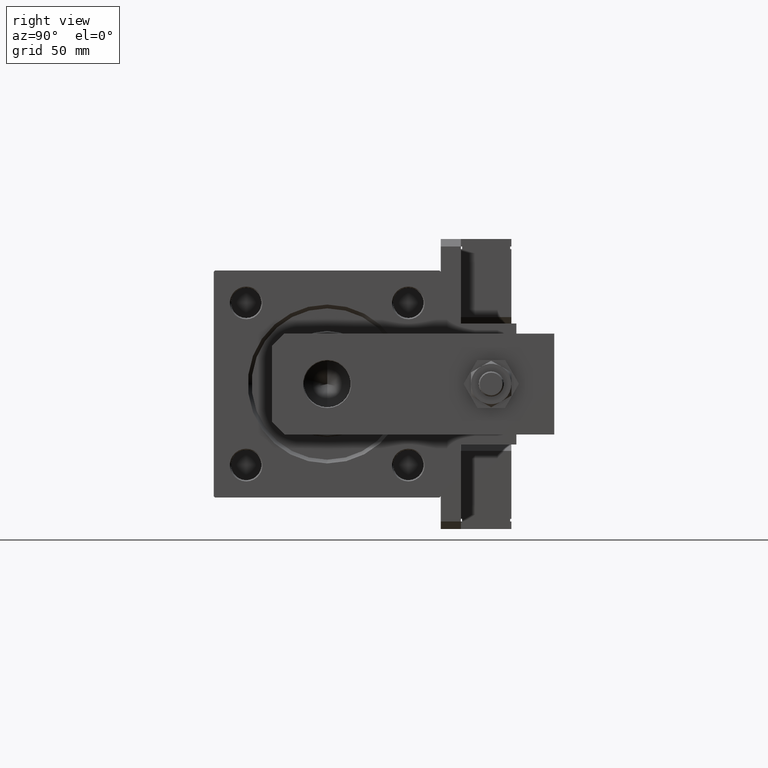
[diagram: clean part render]
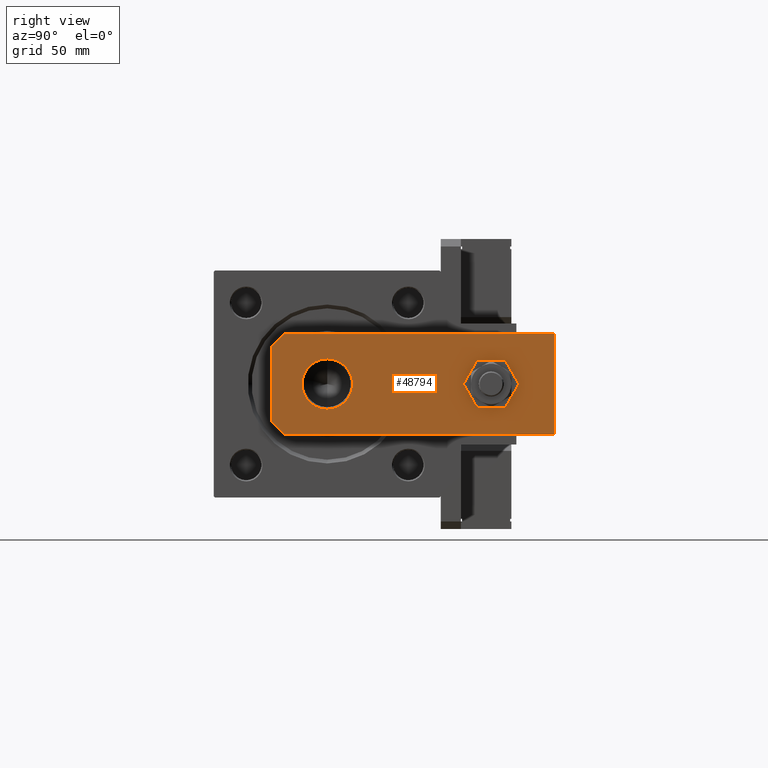
[diagram: same view with one face highlighted and labeled with its STEP entity id]
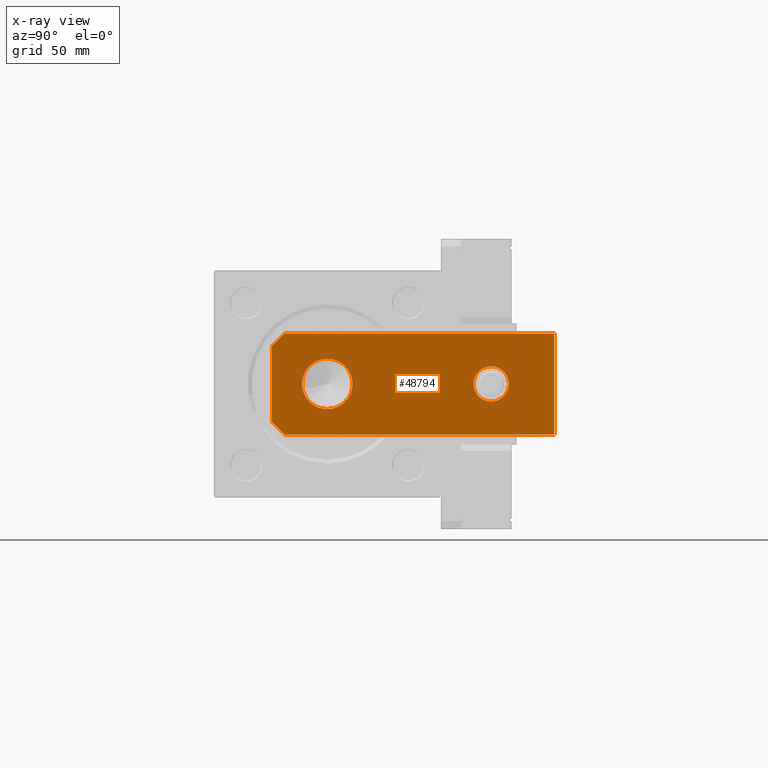
[diagram: x-ray of the same camera — body ghosted, the highlighted face saturated]
A machine part, right view. The second image highlights one B-rep face of the part: STEP entity #48794.
The next image is the same camera in x-ray: the body ghosted, the highlighted face saturated — about 0% of this face is hidden behind the body in this view.
In plain terms, the highlighted planar face has unit normal (1, 0, -0).
Its self-contained STEP definition (entity closure, byte-faithful):
#33 = DIRECTION ( 'NONE',  ( -1.548860246407863583E-16, 1.000000000000000000, 0.000000000000000000 ) ) ;
#993 = EDGE_CURVE ( 'NONE', #30056, #4965, #55925, .T. ) ;
#1282 = EDGE_CURVE ( 'NONE', #11767, #31446, #16836, .T. ) ;
#1464 = DIRECTION ( 'NONE',  ( 1.000000000000000000, 0.000000000000000000, 0.000000000000000000 ) ) ;
#2364 = CARTESIAN_POINT ( 'NONE',  ( -20.00000000000001421, 0.000000000000000000, 8.000000000000000000 ) ) ;
#3506 = CARTESIAN_POINT ( 'NONE',  ( -7.000000000000004441, 87.00000000000000000, 8.000000000000000000 ) ) ;
#3632 = CARTESIAN_POINT ( 'NONE',  ( 19.99999999999999645, 112.0000000000000000, 8.000000000000000000 ) ) ;
#4260 = ORIENTED_EDGE ( 'NONE', *, *, #993, .F. ) ;
#4273 = CARTESIAN_POINT ( 'NONE',  ( -15.00000000000001066, 0.000000000000000000, 8.000000000000000000 ) ) ;
#4965 = VERTEX_POINT ( 'NONE', #54279 ) ;
#5018 = LINE ( 'NONE', #14599, #55722 ) ;
#6557 = DIRECTION ( 'NONE',  ( 0.000000000000000000, 0.000000000000000000, 1.000000000000000000 ) ) ;
#6948 = DIRECTION ( 'NONE',  ( 0.7071067811865485719, 0.7071067811865465735, -0.000000000000000000 ) ) ;
#7133 = DIRECTION ( 'NONE',  ( -0.000000000000000000, 0.000000000000000000, 1.000000000000000000 ) ) ;
#7392 = EDGE_LOOP ( 'NONE', ( #4260, #39923 ) ) ;
#7938 = LINE ( 'NONE', #38491, #18934 ) ;
#9613 = VERTEX_POINT ( 'NONE', #40244 ) ;
#10212 = VERTEX_POINT ( 'NONE', #12403 ) ;
#10216 = CARTESIAN_POINT ( 'NONE',  ( 10.00000000000000178, 21.99999999999999289, 8.000000000000000000 ) ) ;
#10923 = CARTESIAN_POINT ( 'NONE',  ( 20.00000000000001421, 4.999999999999989342, 8.000000000000000000 ) ) ;
#11090 = FACE_BOUND ( 'NONE', #7392, .T. ) ;
#11363 = FACE_OUTER_BOUND ( 'NONE', #38090, .T. ) ;
#11490 = VERTEX_POINT ( 'NONE', #55384 ) ;
#11641 = CARTESIAN_POINT ( 'NONE',  ( 0.000000000000000000, 0.000000000000000000, 8.000000000000000000 ) ) ;
#11767 = VERTEX_POINT ( 'NONE', #36197 ) ;
#11864 = VECTOR ( 'NONE', #6948, 1000.000000000000000 ) ;
#12403 = CARTESIAN_POINT ( 'NONE',  ( 15.00000000000001066, 0.000000000000000000, 8.000000000000000000 ) ) ;
#13325 = CARTESIAN_POINT ( 'NONE',  ( 0.000000000000000000, 21.99999999999999289, 8.000000000000000000 ) ) ;
#14037 = CARTESIAN_POINT ( 'NONE',  ( 19.99999999999999645, 112.0000000000000000, 8.000000000000000000 ) ) ;
#14271 = CIRCLE ( 'NONE', #36898, 10.00000000000000178 ) ;
#14599 = CARTESIAN_POINT ( 'NONE',  ( -20.00000000000000355, 112.0000000000000000, 8.000000000000000000 ) ) ;
#15328 = EDGE_CURVE ( 'NONE', #35810, #9613, #23267, .T. ) ;
#15535 = CIRCLE ( 'NONE', #20955, 7.000000000000004441 ) ;
#15883 = FACE_BOUND ( 'NONE', #34181, .T. ) ;
#16633 = ORIENTED_EDGE ( 'NONE', *, *, #36949, .T. ) ;
#16834 = EDGE_CURVE ( 'NONE', #11490, #11767, #5018, .T. ) ;
#16836 = LINE ( 'NONE', #29571, #54140 ) ;
#16953 = VERTEX_POINT ( 'NONE', #10923 ) ;
#17494 = DIRECTION ( 'NONE',  ( 0.000000000000000000, 0.000000000000000000, 1.000000000000000000 ) ) ;
#18906 = ORIENTED_EDGE ( 'NONE', *, *, #15328, .F. ) ;
#18934 = VECTOR ( 'NONE', #33, 1000.000000000000000 ) ;
#19659 = VECTOR ( 'NONE', #21146, 1000.000000000000000 ) ;
#20955 = AXIS2_PLACEMENT_3D ( 'NONE', #30233, #17494, #25981 ) ;
#21146 = DIRECTION ( 'NONE',  ( -1.000000000000000000, 0.000000000000000000, 0.000000000000000000 ) ) ;
#23155 = VECTOR ( 'NONE', #23567, 1000.000000000000000 ) ;
#23267 = CIRCLE ( 'NONE', #35901, 10.00000000000000178 ) ;
#23567 = DIRECTION ( 'NONE',  ( 1.000000000000000000, 0.000000000000000000, 0.000000000000000000 ) ) ;
#24072 = CARTESIAN_POINT ( 'NONE',  ( 0.000000000000000000, 21.99999999999999289, 8.000000000000000000 ) ) ;
#25981 = DIRECTION ( 'NONE',  ( 1.000000000000000000, 0.000000000000000000, 0.000000000000000000 ) ) ;
#26338 = DIRECTION ( 'NONE',  ( 0.000000000000000000, 0.000000000000000000, 1.000000000000000000 ) ) ;
#28440 = LINE ( 'NONE', #45714, #11864 ) ;
#28514 = LINE ( 'NONE', #3632, #19659 ) ;
#28620 = PLANE ( 'NONE',  #42810 ) ;
#29121 = ORIENTED_EDGE ( 'NONE', *, *, #55076, .T. ) ;
#29571 = CARTESIAN_POINT ( 'NONE',  ( -7.500000000000027534, -7.500000000000007105, 8.000000000000000000 ) ) ;
#30056 = VERTEX_POINT ( 'NONE', #3506 ) ;
#30233 = CARTESIAN_POINT ( 'NONE',  ( -2.000174246416480903E-16, 87.00000000000000000, 8.000000000000000000 ) ) ;
#31446 = VERTEX_POINT ( 'NONE', #4273 ) ;
#31879 = EDGE_CURVE ( 'NONE', #37336, #11490, #28514, .T. ) ;
#33183 = ORIENTED_EDGE ( 'NONE', *, *, #33572, .F. ) ;
#33572 = EDGE_CURVE ( 'NONE', #9613, #35810, #14271, .T. ) ;
#34181 = EDGE_LOOP ( 'NONE', ( #33183, #18906 ) ) ;
#35108 = DIRECTION ( 'NONE',  ( 0.000000000000000000, 0.000000000000000000, 1.000000000000000000 ) ) ;
#35810 = VERTEX_POINT ( 'NONE', #10216 ) ;
#35901 = AXIS2_PLACEMENT_3D ( 'NONE', #13325, #26338, #39094 ) ;
#36197 = CARTESIAN_POINT ( 'NONE',  ( -20.00000000000001421, 5.000000000000018652, 8.000000000000000000 ) ) ;
#36898 = AXIS2_PLACEMENT_3D ( 'NONE', #24072, #6557, #50390 ) ;
#36949 = EDGE_CURVE ( 'NONE', #16953, #37336, #7938, .T. ) ;
#37336 = VERTEX_POINT ( 'NONE', #14037 ) ;
#38090 = EDGE_LOOP ( 'NONE', ( #47230, #44491, #29121, #52151, #16633, #51727 ) ) ;
#38491 = CARTESIAN_POINT ( 'NONE',  ( 20.00000000000001421, 0.000000000000000000, 8.000000000000000000 ) ) ;
#38750 = AXIS2_PLACEMENT_3D ( 'NONE', #39368, #35108, #1464 ) ;
#39094 = DIRECTION ( 'NONE',  ( 1.000000000000000000, 0.000000000000000000, 0.000000000000000000 ) ) ;
#39368 = CARTESIAN_POINT ( 'NONE',  ( -2.000174246416480903E-16, 87.00000000000000000, 8.000000000000000000 ) ) ;
#39686 = EDGE_CURVE ( 'NONE', #10212, #16953, #28440, .T. ) ;
#39923 = ORIENTED_EDGE ( 'NONE', *, *, #42027, .F. ) ;
#40244 = CARTESIAN_POINT ( 'NONE',  ( -10.00000000000000178, 21.99999999999999289, 8.000000000000000000 ) ) ;
#40356 = DIRECTION ( 'NONE',  ( -9.293161478447180511E-17, -1.000000000000000000, 0.000000000000000000 ) ) ;
#40519 = DIRECTION ( 'NONE',  ( 1.000000000000000000, 0.000000000000000000, 0.000000000000000000 ) ) ;
#41958 = LINE ( 'NONE', #2364, #23155 ) ;
#42027 = EDGE_CURVE ( 'NONE', #4965, #30056, #15535, .T. ) ;
#42810 = AXIS2_PLACEMENT_3D ( 'NONE', #11641, #7133, #40519 ) ;
#44491 = ORIENTED_EDGE ( 'NONE', *, *, #1282, .T. ) ;
#45714 = CARTESIAN_POINT ( 'NONE',  ( 7.499999999999983125, -7.500000000000004441, 8.000000000000000000 ) ) ;
#47132 = DIRECTION ( 'NONE',  ( 0.7071067811865465735, -0.7071067811865485719, 0.000000000000000000 ) ) ;
#47230 = ORIENTED_EDGE ( 'NONE', *, *, #16834, .T. ) ;
#48794 = ADVANCED_FACE ( 'NONE', ( #11090, #11363, #15883 ), #28620, .T. ) ;
#50390 = DIRECTION ( 'NONE',  ( 1.000000000000000000, 0.000000000000000000, 0.000000000000000000 ) ) ;
#51727 = ORIENTED_EDGE ( 'NONE', *, *, #31879, .T. ) ;
#52151 = ORIENTED_EDGE ( 'NONE', *, *, #39686, .T. ) ;
#54140 = VECTOR ( 'NONE', #47132, 1000.000000000000000 ) ;
#54279 = CARTESIAN_POINT ( 'NONE',  ( 7.000000000000004441, 87.00000000000000000, 8.000000000000000000 ) ) ;
#55076 = EDGE_CURVE ( 'NONE', #31446, #10212, #41958, .T. ) ;
#55384 = CARTESIAN_POINT ( 'NONE',  ( -20.00000000000000355, 112.0000000000000000, 8.000000000000000000 ) ) ;
#55722 = VECTOR ( 'NONE', #40356, 1000.000000000000000 ) ;
#55925 = CIRCLE ( 'NONE', #38750, 7.000000000000004441 ) ;